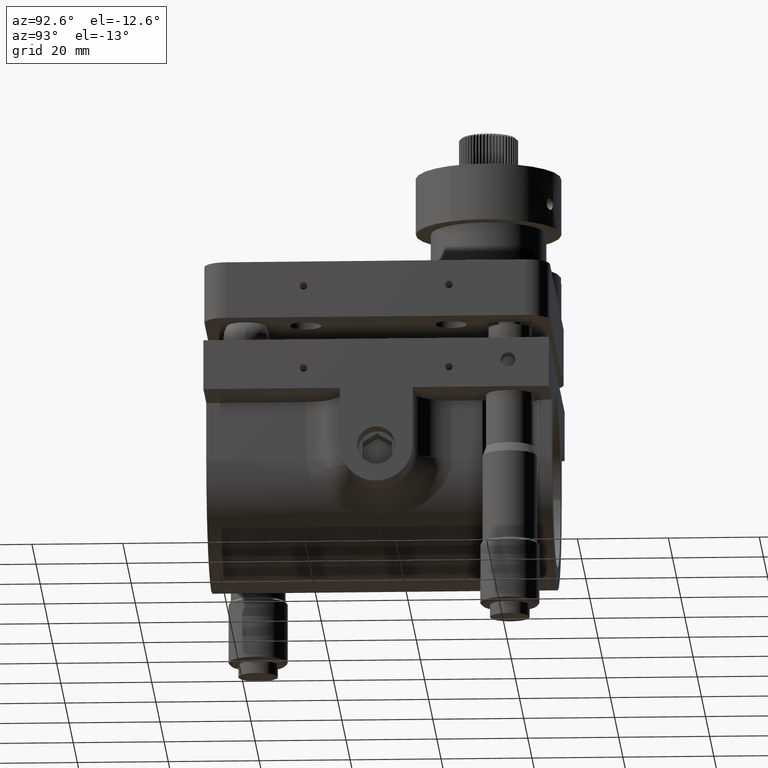
[diagram: clean part render]
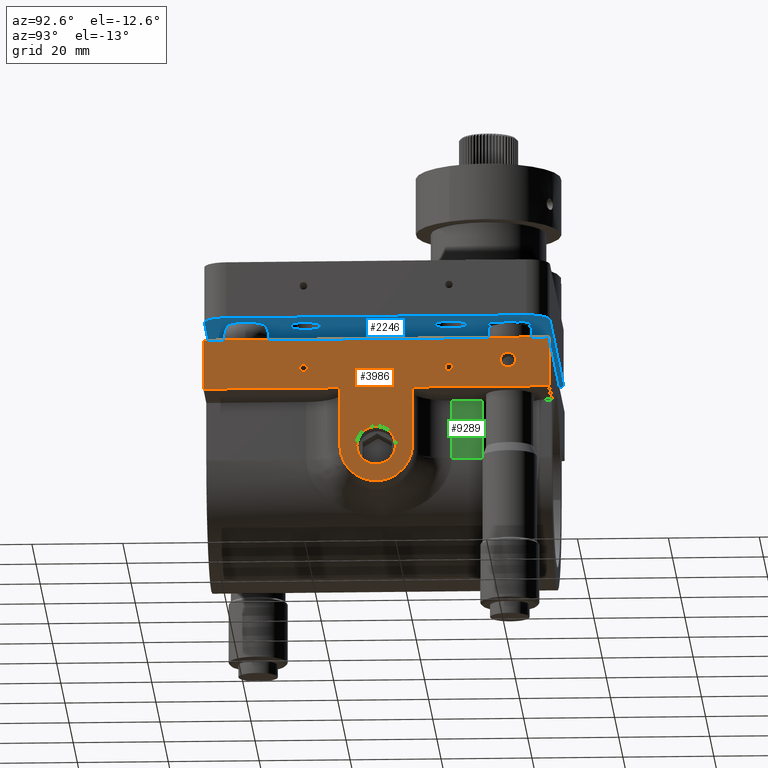
[diagram: same view with three faces highlighted in distinct colors, each labeled with its STEP entity id]
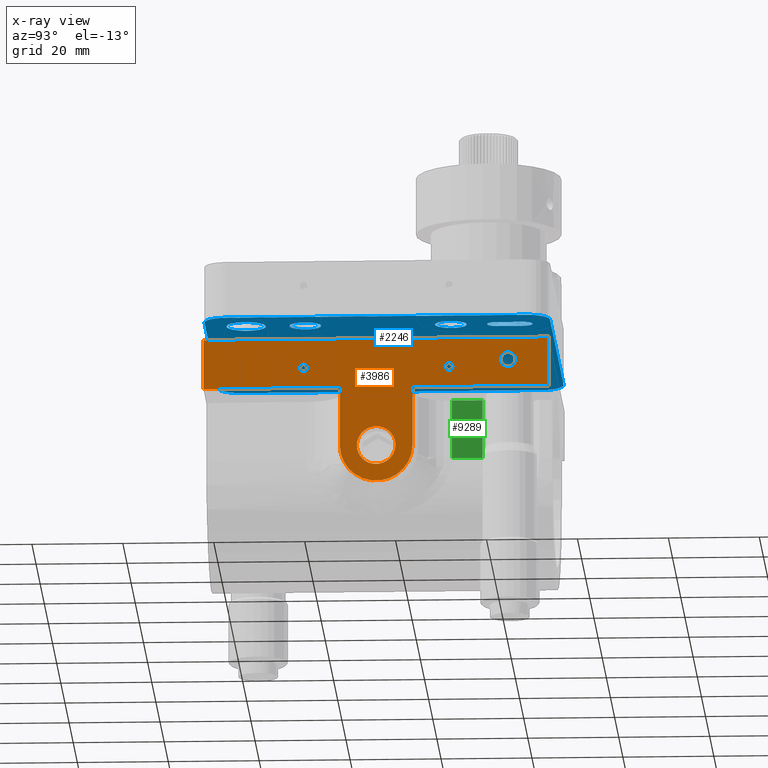
[diagram: x-ray of the same camera — body ghosted, the three highlighted faces saturated]
A machine part, auxiliary view with three faces highlighted in distinct colors.
The next image is the same camera in x-ray (body ghosted, the three faces saturated) — at least one of them is partly hidden behind the body in this view.
Their STEP definitions:

[orange] entity #3986 — the highlighted planar face has unit normal (1, 0, 0).
#56 = EDGE_CURVE ( 'NONE', #9675, #6770, #5844, .T. ) ;
#70 = CARTESIAN_POINT ( 'NONE',  ( 38.00000000000003600, 234.0000000000001100, 13.00000000000002000 ) ) ;
#109 = DIRECTION ( 'NONE',  ( 1.000000000000000000, 3.356086344444792600E-016, 1.025412375725086200E-017 ) ) ;
#124 = VERTEX_POINT ( 'NONE', #10562 ) ;
#136 = CARTESIAN_POINT ( 'NONE',  ( 37.99999999999997900, 310.0000000000001700, 12.99999999999998900 ) ) ;
#180 = ORIENTED_EDGE ( 'NONE', *, *, #6428, .T. ) ;
#201 = VECTOR ( 'NONE', #1202, 1000.000000000000000 ) ;
#412 = VERTEX_POINT ( 'NONE', #11093 ) ;
#468 = VECTOR ( 'NONE', #11022, 1000.000000000000000 ) ;
#483 = CARTESIAN_POINT ( 'NONE',  ( 38.00000000000005700, 287.1500000000001500, 17.50000000000002800 ) ) ;
#566 = CARTESIAN_POINT ( 'NONE',  ( 38.00000000000001400, 276.2500000000001100, 2.115505114055332400E-015 ) ) ;
#672 = AXIS2_PLACEMENT_3D ( 'NONE', #4321, #11978, #6866 ) ;
#733 = LINE ( 'NONE', #1292, #3561 ) ;
#752 = FACE_OUTER_BOUND ( 'NONE', #4712, .T. ) ;
#990 = DIRECTION ( 'NONE',  ( 1.000000000000000000, 3.356086344444792600E-016, 1.025412375725086200E-017 ) ) ;
#1153 = CARTESIAN_POINT ( 'NONE',  ( 38.00000000000001400, 267.7500000000001700, 4.202666036901082200E-015 ) ) ;
#1202 = DIRECTION ( 'NONE',  ( 1.025412375725082900E-017, 1.320038492901063100E-016, 1.000000000000000000 ) ) ;
#1221 = AXIS2_PLACEMENT_3D ( 'NONE', #2695, #9407, #5815 ) ;
#1225 = CARTESIAN_POINT ( 'NONE',  ( 38.00000000000005700, 288.8500000000001400, 17.50000000000003200 ) ) ;
#1292 = CARTESIAN_POINT ( 'NONE',  ( 37.99999999999997900, 310.0000000000001700, 12.99999999999998900 ) ) ;
#1301 = CARTESIAN_POINT ( 'NONE',  ( 38.00000000000005000, 301.0000000000001700, 18.99999999999999600 ) ) ;
#1314 = ORIENTED_EDGE ( 'NONE', *, *, #11535, .F. ) ;
#1423 = ORIENTED_EDGE ( 'NONE', *, *, #6841, .F. ) ;
#1573 = EDGE_CURVE ( 'NONE', #5611, #412, #733, .T. ) ;
#1608 = CARTESIAN_POINT ( 'NONE',  ( 38.00000000000001400, 272.0000000000001100, 3.469446951953614200E-015 ) ) ;
#1675 = EDGE_LOOP ( 'NONE', ( #8608, #5345 ) ) ;
#1739 = EDGE_CURVE ( 'NONE', #2347, #9618, #2671, .T. ) ;
#1752 = VERTEX_POINT ( 'NONE', #10173 ) ;
#1816 = LINE ( 'NONE', #136, #6895 ) ;
#2009 = VERTEX_POINT ( 'NONE', #4859 ) ;
#2051 = ORIENTED_EDGE ( 'NONE', *, *, #4196, .F. ) ;
#2120 = EDGE_CURVE ( 'NONE', #3007, #3743, #2370, .T. ) ;
#2221 = CIRCLE ( 'NONE', #8136, 1.649999999999984800 ) ;
#2347 = VERTEX_POINT ( 'NONE', #566 ) ;
#2370 = CIRCLE ( 'NONE', #1221, 8.000000000000007100 ) ;
#2671 = CIRCLE ( 'NONE', #2929, 4.249999999999976000 ) ;
#2695 = CARTESIAN_POINT ( 'NONE',  ( 38.00000000000001400, 272.0000000000001100, 3.469446951953614200E-015 ) ) ;
#2698 = ORIENTED_EDGE ( 'NONE', *, *, #2120, .T. ) ;
#2700 = DIRECTION ( 'NONE',  ( 0.0000000000000000000, -1.000000000000000000, 1.725221376346993600E-016 ) ) ;
#2929 = AXIS2_PLACEMENT_3D ( 'NONE', #1608, #3495, #9295 ) ;
#3007 = VERTEX_POINT ( 'NONE', #7470 ) ;
#3225 = DIRECTION ( 'NONE',  ( 1.000000000000000000, 3.356086344444792600E-016, 1.025412375725086200E-017 ) ) ;
#3495 = DIRECTION ( 'NONE',  ( 1.000000000000000000, 3.356086344444792600E-016, 1.025412375725086200E-017 ) ) ;
#3539 = VERTEX_POINT ( 'NONE', #70 ) ;
#3550 = CIRCLE ( 'NONE', #672, 0.8500000000000174100 ) ;
#3561 = VECTOR ( 'NONE', #9890, 1000.000000000000000 ) ;
#3663 = CARTESIAN_POINT ( 'NONE',  ( 38.00000000000003600, 234.0000000000001100, 24.00000000000001100 ) ) ;
#3684 = DIRECTION ( 'NONE',  ( 8.022492494822361800E-016, -1.000000000000000000, 1.725221376346992100E-016 ) ) ;
#3717 = EDGE_CURVE ( 'NONE', #124, #1752, #5387, .T. ) ;
#3743 = VERTEX_POINT ( 'NONE', #11835 ) ;
#3765 = CARTESIAN_POINT ( 'NONE',  ( 38.00000000000001400, 272.0000000000001100, 3.469446951953614200E-015 ) ) ;
#3769 = EDGE_CURVE ( 'NONE', #12337, #3007, #8408, .T. ) ;
#3986 = ADVANCED_FACE ( 'NONE', ( #11546, #6438, #5824, #10933, #752 ), #9600, .T. ) ;
#4114 = DIRECTION ( 'NONE',  ( 1.000000000000000000, 3.356086344444792600E-016, 1.025412375725086200E-017 ) ) ;
#4196 = EDGE_CURVE ( 'NONE', #12337, #3539, #1816, .T. ) ;
#4205 = ORIENTED_EDGE ( 'NONE', *, *, #5157, .F. ) ;
#4293 = CARTESIAN_POINT ( 'NONE',  ( 38.00000000000005000, 302.6500000000001500, 18.99999999999999600 ) ) ;
#4321 = CARTESIAN_POINT ( 'NONE',  ( 38.00000000000005700, 288.0000000000001700, 17.50000000000002800 ) ) ;
#4507 = EDGE_CURVE ( 'NONE', #5611, #2009, #12442, .T. ) ;
#4588 = AXIS2_PLACEMENT_3D ( 'NONE', #11595, #6734, #4910 ) ;
#4712 = EDGE_LOOP ( 'NONE', ( #4205, #2051, #8904, #2698, #5655, #11484, #11465, #180 ) ) ;
#4787 = CARTESIAN_POINT ( 'NONE',  ( 37.99999999999997900, 310.0000000000001700, 24.00000000000001800 ) ) ;
#4859 = CARTESIAN_POINT ( 'NONE',  ( 37.99999999999997900, 310.0000000000001700, 24.00000000000001800 ) ) ;
#4910 = DIRECTION ( 'NONE',  ( 0.0000000000000000000, -1.000000000000000000, 0.0000000000000000000 ) ) ;
#5054 = AXIS2_PLACEMENT_3D ( 'NONE', #4787, #11528, #9555 ) ;
#5097 = EDGE_LOOP ( 'NONE', ( #1423, #1314 ) ) ;
#5106 = CARTESIAN_POINT ( 'NONE',  ( 37.99999999999997900, 310.0000000000001700, 24.00000000000001800 ) ) ;
#5157 = EDGE_CURVE ( 'NONE', #3539, #8013, #11829, .T. ) ;
#5164 = DIRECTION ( 'NONE',  ( 0.0000000000000000000, -1.000000000000000000, 0.0000000000000000000 ) ) ;
#5274 = LINE ( 'NONE', #5986, #201 ) ;
#5345 = ORIENTED_EDGE ( 'NONE', *, *, #1739, .F. ) ;
#5387 = CIRCLE ( 'NONE', #12222, 0.8500000000000174100 ) ;
#5611 = VERTEX_POINT ( 'NONE', #8903 ) ;
#5655 = ORIENTED_EDGE ( 'NONE', *, *, #8461, .T. ) ;
#5815 = DIRECTION ( 'NONE',  ( 8.673617379884027600E-016, -1.000000000000000000, 1.725221376346986900E-016 ) ) ;
#5824 = FACE_BOUND ( 'NONE', #5097, .T. ) ;
#5844 = CIRCLE ( 'NONE', #9749, 1.649999999999984800 ) ;
#5986 = CARTESIAN_POINT ( 'NONE',  ( 38.00000000000000700, 280.0000000000001100, 3.469446951953614200E-015 ) ) ;
#6161 = CARTESIAN_POINT ( 'NONE',  ( 38.00000000000002100, 256.0000000000001100, 17.50000000000000000 ) ) ;
#6428 = EDGE_CURVE ( 'NONE', #2009, #8013, #10247, .T. ) ;
#6438 = FACE_BOUND ( 'NONE', #11605, .T. ) ;
#6523 = EDGE_CURVE ( 'NONE', #1752, #124, #8444, .T. ) ;
#6726 = VECTOR ( 'NONE', #10387, 1000.000000000000000 ) ;
#6734 = DIRECTION ( 'NONE',  ( 1.000000000000000000, 3.356086344444792600E-016, 1.025412375725086200E-017 ) ) ;
#6770 = VERTEX_POINT ( 'NONE', #8377 ) ;
#6841 = EDGE_CURVE ( 'NONE', #7430, #10113, #12203, .T. ) ;
#6866 = DIRECTION ( 'NONE',  ( 0.0000000000000000000, -1.000000000000000000, 0.0000000000000000000 ) ) ;
#6885 = CARTESIAN_POINT ( 'NONE',  ( 37.99999999999997900, 310.0000000000001700, 24.00000000000001800 ) ) ;
#6895 = VECTOR ( 'NONE', #12406, 1000.000000000000000 ) ;
#7043 = CIRCLE ( 'NONE', #9081, 4.249999999999976000 ) ;
#7430 = VERTEX_POINT ( 'NONE', #483 ) ;
#7470 = CARTESIAN_POINT ( 'NONE',  ( 38.00000000000008500, 264.0000000000001100, 3.816391647148975600E-014 ) ) ;
#8013 = VERTEX_POINT ( 'NONE', #11554 ) ;
#8125 = CARTESIAN_POINT ( 'NONE',  ( 38.00000000000002100, 256.0000000000001100, 17.50000000000000000 ) ) ;
#8128 = DIRECTION ( 'NONE',  ( 1.025412375725082900E-017, 1.320038492901063100E-016, 1.000000000000000000 ) ) ;
#8136 = AXIS2_PLACEMENT_3D ( 'NONE', #1301, #4114, #5164 ) ;
#8377 = CARTESIAN_POINT ( 'NONE',  ( 38.00000000000005000, 299.3500000000001900, 18.99999999999999600 ) ) ;
#8408 = LINE ( 'NONE', #10059, #468 ) ;
#8444 = CIRCLE ( 'NONE', #8539, 0.8500000000000174100 ) ;
#8461 = EDGE_CURVE ( 'NONE', #3743, #412, #5274, .T. ) ;
#8539 = AXIS2_PLACEMENT_3D ( 'NONE', #8125, #9922, #11008 ) ;
#8555 = CARTESIAN_POINT ( 'NONE',  ( 38.00000000000007100, 264.0000000000001100, 13.00000000000000700 ) ) ;
#8608 = ORIENTED_EDGE ( 'NONE', *, *, #10449, .F. ) ;
#8675 = DIRECTION ( 'NONE',  ( 0.0000000000000000000, -1.000000000000000000, 0.0000000000000000000 ) ) ;
#8903 = CARTESIAN_POINT ( 'NONE',  ( 37.99999999999997900, 310.0000000000001700, 12.99999999999998900 ) ) ;
#8904 = ORIENTED_EDGE ( 'NONE', *, *, #3769, .T. ) ;
#8980 = EDGE_LOOP ( 'NONE', ( #9111, #9824 ) ) ;
#9081 = AXIS2_PLACEMENT_3D ( 'NONE', #3765, #990, #2700 ) ;
#9111 = ORIENTED_EDGE ( 'NONE', *, *, #11917, .F. ) ;
#9295 = DIRECTION ( 'NONE',  ( 0.0000000000000000000, -1.000000000000000000, 1.725221376346993600E-016 ) ) ;
#9407 = DIRECTION ( 'NONE',  ( 1.000000000000000000, 3.356086344444792600E-016, 1.025412375725086200E-017 ) ) ;
#9555 = DIRECTION ( 'NONE',  ( 8.022492494822361800E-016, -1.000000000000000000, 1.725221376346992100E-016 ) ) ;
#9600 = PLANE ( 'NONE',  #5054 ) ;
#9618 = VERTEX_POINT ( 'NONE', #1153 ) ;
#9675 = VERTEX_POINT ( 'NONE', #4293 ) ;
#9732 = ORIENTED_EDGE ( 'NONE', *, *, #3717, .F. ) ;
#9749 = AXIS2_PLACEMENT_3D ( 'NONE', #11445, #109, #8675 ) ;
#9824 = ORIENTED_EDGE ( 'NONE', *, *, #56, .F. ) ;
#9877 = VECTOR ( 'NONE', #8128, 1000.000000000000000 ) ;
#9890 = DIRECTION ( 'NONE',  ( 8.022492494822361800E-016, -1.000000000000000000, 1.725221376346992100E-016 ) ) ;
#9922 = DIRECTION ( 'NONE',  ( 1.000000000000000000, 3.356086344444792600E-016, 1.025412375725086200E-017 ) ) ;
#10059 = CARTESIAN_POINT ( 'NONE',  ( 38.00000000000008500, 264.0000000000001100, 3.816391647148975600E-014 ) ) ;
#10113 = VERTEX_POINT ( 'NONE', #1225 ) ;
#10173 = CARTESIAN_POINT ( 'NONE',  ( 38.00000000000002100, 255.1500000000000900, 17.50000000000000000 ) ) ;
#10247 = LINE ( 'NONE', #6885, #10536 ) ;
#10292 = ORIENTED_EDGE ( 'NONE', *, *, #6523, .F. ) ;
#10387 = DIRECTION ( 'NONE',  ( 1.025412375725082900E-017, 1.320038492901063100E-016, 1.000000000000000000 ) ) ;
#10449 = EDGE_CURVE ( 'NONE', #9618, #2347, #7043, .T. ) ;
#10536 = VECTOR ( 'NONE', #3684, 1000.000000000000000 ) ;
#10562 = CARTESIAN_POINT ( 'NONE',  ( 38.00000000000002100, 256.8500000000001400, 17.50000000000000000 ) ) ;
#10858 = DIRECTION ( 'NONE',  ( 0.0000000000000000000, 1.000000000000000000, 0.0000000000000000000 ) ) ;
#10933 = FACE_BOUND ( 'NONE', #1675, .T. ) ;
#11008 = DIRECTION ( 'NONE',  ( 0.0000000000000000000, 1.000000000000000000, 0.0000000000000000000 ) ) ;
#11022 = DIRECTION ( 'NONE',  ( -1.025412375725082900E-017, -1.320038492901063100E-016, -1.000000000000000000 ) ) ;
#11093 = CARTESIAN_POINT ( 'NONE',  ( 37.99999999999999300, 280.0000000000001100, 13.00000000000001200 ) ) ;
#11445 = CARTESIAN_POINT ( 'NONE',  ( 38.00000000000005000, 301.0000000000001700, 18.99999999999999600 ) ) ;
#11465 = ORIENTED_EDGE ( 'NONE', *, *, #4507, .T. ) ;
#11484 = ORIENTED_EDGE ( 'NONE', *, *, #1573, .F. ) ;
#11528 = DIRECTION ( 'NONE',  ( 1.000000000000000000, 8.022492494822361800E-016, 1.025412375725078100E-017 ) ) ;
#11535 = EDGE_CURVE ( 'NONE', #10113, #7430, #3550, .T. ) ;
#11546 = FACE_BOUND ( 'NONE', #8980, .T. ) ;
#11554 = CARTESIAN_POINT ( 'NONE',  ( 38.00000000000003600, 234.0000000000001100, 24.00000000000001100 ) ) ;
#11595 = CARTESIAN_POINT ( 'NONE',  ( 38.00000000000005700, 288.0000000000001700, 17.50000000000002800 ) ) ;
#11605 = EDGE_LOOP ( 'NONE', ( #10292, #9732 ) ) ;
#11829 = LINE ( 'NONE', #3663, #6726 ) ;
#11835 = CARTESIAN_POINT ( 'NONE',  ( 38.00000000000000700, 280.0000000000001100, 3.469446951953614200E-015 ) ) ;
#11917 = EDGE_CURVE ( 'NONE', #6770, #9675, #2221, .T. ) ;
#11978 = DIRECTION ( 'NONE',  ( 1.000000000000000000, 3.356086344444792600E-016, 1.025412375725086200E-017 ) ) ;
#12203 = CIRCLE ( 'NONE', #4588, 0.8500000000000174100 ) ;
#12222 = AXIS2_PLACEMENT_3D ( 'NONE', #6161, #3225, #10858 ) ;
#12337 = VERTEX_POINT ( 'NONE', #8555 ) ;
#12406 = DIRECTION ( 'NONE',  ( 8.022492494822361800E-016, -1.000000000000000000, 1.725221376346992100E-016 ) ) ;
#12442 = LINE ( 'NONE', #5106, #9877 ) ;

[blue] entity #2246 — the highlighted planar face has unit normal (0, -0, -1).
#4 = DIRECTION ( 'NONE',  ( 1.214306433183765000E-016, -8.898946942662199400E-031, -1.000000000000000000 ) ) ;
#7 = LINE ( 'NONE', #5582, #12297 ) ;
#14 = AXIS2_PLACEMENT_3D ( 'NONE', #1842, #2765, #9483 ) ;
#86 = VERTEX_POINT ( 'NONE', #4631 ) ;
#92 = DIRECTION ( 'NONE',  ( 6.308085367188383300E-016, -1.000000000000000000, 0.0000000000000000000 ) ) ;
#133 = CIRCLE ( 'NONE', #10191, 4.330127018922186500 ) ;
#151 = CARTESIAN_POINT ( 'NONE',  ( 38.00000000000007800, 305.0000000000000600, 29.00000000000000700 ) ) ;
#234 = DIRECTION ( 'NONE',  ( 1.214306433183765000E-016, -8.898946942662199400E-031, -1.000000000000000000 ) ) ;
#517 = EDGE_CURVE ( 'NONE', #2880, #4401, #1068, .T. ) ;
#580 = ORIENTED_EDGE ( 'NONE', *, *, #5485, .T. ) ;
#592 = EDGE_CURVE ( 'NONE', #6102, #2576, #11550, .T. ) ;
#658 = AXIS2_PLACEMENT_3D ( 'NONE', #11979, #1473, #8968 ) ;
#682 = EDGE_CURVE ( 'NONE', #86, #9603, #10655, .T. ) ;
#716 = FACE_BOUND ( 'NONE', #9539, .T. ) ;
#751 = EDGE_CURVE ( 'NONE', #4401, #7965, #7, .T. ) ;
#809 = CARTESIAN_POINT ( 'NONE',  ( 27.00000000000001800, 298.0000000000000600, 29.00000000000000400 ) ) ;
#883 = VECTOR ( 'NONE', #5206, 1000.000000000000000 ) ;
#1001 = AXIS2_PLACEMENT_3D ( 'NONE', #3474, #4351, #8222 ) ;
#1013 = FACE_BOUND ( 'NONE', #9678, .T. ) ;
#1016 = VERTEX_POINT ( 'NONE', #6382 ) ;
#1068 = CIRCLE ( 'NONE', #3407, 5.000000000000004400 ) ;
#1148 = VERTEX_POINT ( 'NONE', #9147 ) ;
#1220 = VERTEX_POINT ( 'NONE', #4313 ) ;
#1242 = CARTESIAN_POINT ( 'NONE',  ( 33.00000000000011400, 234.0000000000000300, 29.00000000000000700 ) ) ;
#1315 = CARTESIAN_POINT ( 'NONE',  ( 29.00000000000000400, 256.0000000000000600, 29.00000000000000400 ) ) ;
#1434 = EDGE_LOOP ( 'NONE', ( #580, #7670 ) ) ;
#1473 = DIRECTION ( 'NONE',  ( 1.214306433183765000E-016, -8.898946942662199400E-031, -1.000000000000000000 ) ) ;
#1579 = VERTEX_POINT ( 'NONE', #6886 ) ;
#1601 = DIRECTION ( 'NONE',  ( 8.673617379884027600E-016, -1.000000000000000000, 0.0000000000000000000 ) ) ;
#1622 = CARTESIAN_POINT ( 'NONE',  ( -32.99999999999992200, 305.0000000000000000, 28.99999999999999600 ) ) ;
#1658 = AXIS2_PLACEMENT_3D ( 'NONE', #11649, #234, #6880 ) ;
#1663 = EDGE_CURVE ( 'NONE', #2337, #9471, #8825, .T. ) ;
#1699 = CARTESIAN_POINT ( 'NONE',  ( 31.00000000000001100, 304.0000000000000600, 29.00000000000000400 ) ) ;
#1784 = CARTESIAN_POINT ( 'NONE',  ( -21.99999999999998200, 294.0000000000000000, 29.00000000000000000 ) ) ;
#1842 = CARTESIAN_POINT ( 'NONE',  ( 29.00000000000000400, 256.0000000000000600, 29.00000000000000400 ) ) ;
#1849 = DIRECTION ( 'NONE',  ( -1.000000000000000000, -5.210289740157240400E-016, -1.214306433183765000E-016 ) ) ;
#1861 = DIRECTION ( 'NONE',  ( 1.214306433183765000E-016, -8.898946942662199400E-031, -1.000000000000000000 ) ) ;
#2019 = CARTESIAN_POINT ( 'NONE',  ( 33.00000000000007800, 305.0000000000000600, 29.00000000000000700 ) ) ;
#2020 = CIRCLE ( 'NONE', #8453, 4.330127018922186500 ) ;
#2079 = EDGE_CURVE ( 'NONE', #1148, #4619, #133, .T. ) ;
#2111 = EDGE_CURVE ( 'NONE', #9471, #4430, #8971, .T. ) ;
#2246 = ADVANCED_FACE ( 'NONE', ( #8962, #3393, #716, #2789, #1013, #12112, #10151, #11805 ), #11956, .T. ) ;
#2274 = CARTESIAN_POINT ( 'NONE',  ( -21.99999999999998200, 294.0000000000000000, 29.00000000000000000 ) ) ;
#2337 = VERTEX_POINT ( 'NONE', #1699 ) ;
#2346 = VERTEX_POINT ( 'NONE', #11222 ) ;
#2452 = CIRCLE ( 'NONE', #3220, 5.500000000000005300 ) ;
#2484 = ORIENTED_EDGE ( 'NONE', *, *, #5000, .F. ) ;
#2528 = EDGE_CURVE ( 'NONE', #11460, #2346, #6541, .T. ) ;
#2545 = CIRCLE ( 'NONE', #3285, 4.000000000000003600 ) ;
#2576 = VERTEX_POINT ( 'NONE', #9632 ) ;
#2652 = AXIS2_PLACEMENT_3D ( 'NONE', #4749, #4, #6699 ) ;
#2765 = DIRECTION ( 'NONE',  ( 1.214306433183765000E-016, -8.898946942662199400E-031, -1.000000000000000000 ) ) ;
#2789 = FACE_BOUND ( 'NONE', #6990, .T. ) ;
#2798 = VECTOR ( 'NONE', #6695, 1000.000000000000000 ) ;
#2807 = LINE ( 'NONE', #10064, #10174 ) ;
#2866 = VECTOR ( 'NONE', #11003, 1000.000000000000000 ) ;
#2880 = VERTEX_POINT ( 'NONE', #9440 ) ;
#2893 = EDGE_CURVE ( 'NONE', #1220, #9383, #12397, .T. ) ;
#2962 = LINE ( 'NONE', #9938, #883 ) ;
#3095 = CARTESIAN_POINT ( 'NONE',  ( -37.99999999999992200, 305.0000000000000000, 28.99999999999999600 ) ) ;
#3144 = DIRECTION ( 'NONE',  ( 8.012344526598195600E-016, -1.000000000000000000, 0.0000000000000000000 ) ) ;
#3220 = AXIS2_PLACEMENT_3D ( 'NONE', #2274, #9087, #9048 ) ;
#3285 = AXIS2_PLACEMENT_3D ( 'NONE', #12225, #11162, #1601 ) ;
#3337 = EDGE_LOOP ( 'NONE', ( #7804, #5013 ) ) ;
#3393 = FACE_OUTER_BOUND ( 'NONE', #10396, .T. ) ;
#3404 = LINE ( 'NONE', #9900, #11056 ) ;
#3407 = AXIS2_PLACEMENT_3D ( 'NONE', #10385, #12412, #3706 ) ;
#3465 = DIRECTION ( 'NONE',  ( 1.214306433183765000E-016, -8.898946942662199400E-031, -1.000000000000000000 ) ) ;
#3474 = CARTESIAN_POINT ( 'NONE',  ( 29.00000000000001400, 298.0000000000000600, 29.00000000000000400 ) ) ;
#3508 = DIRECTION ( 'NONE',  ( 0.0000000000000000000, -1.000000000000000000, 0.0000000000000000000 ) ) ;
#3588 = CIRCLE ( 'NONE', #7950, 3.500000000000003100 ) ;
#3593 = VERTEX_POINT ( 'NONE', #3095 ) ;
#3599 = CIRCLE ( 'NONE', #5839, 3.500000000000003100 ) ;
#3628 = ORIENTED_EDGE ( 'NONE', *, *, #10371, .F. ) ;
#3671 = CIRCLE ( 'NONE', #1658, 2.000000000000001800 ) ;
#3695 = EDGE_CURVE ( 'NONE', #2346, #11460, #3588, .T. ) ;
#3706 = DIRECTION ( 'NONE',  ( 0.0000000000000000000, -1.000000000000000000, 0.0000000000000000000 ) ) ;
#3742 = DIRECTION ( 'NONE',  ( 9.912705577010316700E-016, -1.000000000000000000, 0.0000000000000000000 ) ) ;
#3751 = CIRCLE ( 'NONE', #4122, 3.500000000000003100 ) ;
#3990 = VERTEX_POINT ( 'NONE', #10508 ) ;
#4033 = CARTESIAN_POINT ( 'NONE',  ( 29.00000000000001100, 243.0000000000000600, 29.00000000000000400 ) ) ;
#4067 = DIRECTION ( 'NONE',  ( -5.210289740157184200E-016, 1.000000000000000000, -6.878271161758031400E-031 ) ) ;
#4122 = AXIS2_PLACEMENT_3D ( 'NONE', #1315, #6054, #5221 ) ;
#4198 = CARTESIAN_POINT ( 'NONE',  ( 27.00000000000001400, 304.0000000000000600, 29.00000000000000400 ) ) ;
#4257 = ORIENTED_EDGE ( 'NONE', *, *, #3695, .F. ) ;
#4278 = AXIS2_PLACEMENT_3D ( 'NONE', #2019, #9714, #6871 ) ;
#4294 = CARTESIAN_POINT ( 'NONE',  ( 29.00000000000002100, 288.0000000000000600, 29.00000000000000400 ) ) ;
#4310 = VERTEX_POINT ( 'NONE', #4865 ) ;
#4313 = CARTESIAN_POINT ( 'NONE',  ( 29.00000000000000700, 252.5000000000000600, 29.00000000000000400 ) ) ;
#4351 = DIRECTION ( 'NONE',  ( 1.214306433183765000E-016, -8.898946942662199400E-031, -1.000000000000000000 ) ) ;
#4401 = VERTEX_POINT ( 'NONE', #1242 ) ;
#4430 = VERTEX_POINT ( 'NONE', #10730 ) ;
#4448 = CARTESIAN_POINT ( 'NONE',  ( 29.00000000000000000, 259.5000000000000600, 29.00000000000000400 ) ) ;
#4523 = ORIENTED_EDGE ( 'NONE', *, *, #10690, .T. ) ;
#4619 = VERTEX_POINT ( 'NONE', #11907 ) ;
#4631 = CARTESIAN_POINT ( 'NONE',  ( 33.00000000000000700, 310.0000000000000600, 29.00000000000000700 ) ) ;
#4749 = CARTESIAN_POINT ( 'NONE',  ( -28.99999999999999600, 256.0000000000000000, 28.99999999999999600 ) ) ;
#4819 = ORIENTED_EDGE ( 'NONE', *, *, #592, .F. ) ;
#4838 = CARTESIAN_POINT ( 'NONE',  ( 29.00000000000002500, 284.5000000000000600, 29.00000000000000400 ) ) ;
#4865 = CARTESIAN_POINT ( 'NONE',  ( -32.99999999999999300, 310.0000000000000000, 28.99999999999999600 ) ) ;
#4944 = CARTESIAN_POINT ( 'NONE',  ( 29.00000000000001400, 298.0000000000000600, 29.00000000000000400 ) ) ;
#4977 = AXIS2_PLACEMENT_3D ( 'NONE', #1622, #9273, #3508 ) ;
#5000 = EDGE_CURVE ( 'NONE', #1579, #9502, #6259, .T. ) ;
#5013 = ORIENTED_EDGE ( 'NONE', *, *, #8961, .F. ) ;
#5061 = EDGE_CURVE ( 'NONE', #1016, #3593, #2807, .T. ) ;
#5117 = DIRECTION ( 'NONE',  ( 9.912705577010316700E-016, -1.000000000000000000, 0.0000000000000000000 ) ) ;
#5146 = CIRCLE ( 'NONE', #4977, 5.000000000000004400 ) ;
#5206 = DIRECTION ( 'NONE',  ( 5.210289740157184200E-016, -1.000000000000000000, 6.878271161758031400E-031 ) ) ;
#5221 = DIRECTION ( 'NONE',  ( 9.912705577010316700E-016, -1.000000000000000000, 0.0000000000000000000 ) ) ;
#5250 = DIRECTION ( 'NONE',  ( 8.673617379884027600E-016, -1.000000000000000000, 0.0000000000000000000 ) ) ;
#5255 = CIRCLE ( 'NONE', #658, 5.000000000000004400 ) ;
#5265 = CIRCLE ( 'NONE', #9472, 3.500000000000003100 ) ;
#5269 = ORIENTED_EDGE ( 'NONE', *, *, #751, .T. ) ;
#5295 = ORIENTED_EDGE ( 'NONE', *, *, #9267, .T. ) ;
#5439 = ORIENTED_EDGE ( 'NONE', *, *, #5965, .F. ) ;
#5485 = EDGE_CURVE ( 'NONE', #4619, #1148, #2020, .T. ) ;
#5508 = CARTESIAN_POINT ( 'NONE',  ( -28.99999999999998900, 239.0000000000000600, 28.99999999999999600 ) ) ;
#5582 = CARTESIAN_POINT ( 'NONE',  ( 33.00000000000011400, 234.0000000000000300, 29.00000000000000700 ) ) ;
#5710 = ORIENTED_EDGE ( 'NONE', *, *, #1663, .F. ) ;
#5712 = EDGE_CURVE ( 'NONE', #3593, #4310, #5146, .T. ) ;
#5839 = AXIS2_PLACEMENT_3D ( 'NONE', #4294, #3465, #9270 ) ;
#5965 = EDGE_CURVE ( 'NONE', #2576, #6102, #2452, .T. ) ;
#6054 = DIRECTION ( 'NONE',  ( 1.214306433183765000E-016, -8.898946942662199400E-031, -1.000000000000000000 ) ) ;
#6073 = DIRECTION ( 'NONE',  ( -1.214306433183765000E-016, 8.898946942662199400E-031, 1.000000000000000000 ) ) ;
#6082 = EDGE_LOOP ( 'NONE', ( #3628, #2484 ) ) ;
#6102 = VERTEX_POINT ( 'NONE', #6714 ) ;
#6115 = CARTESIAN_POINT ( 'NONE',  ( 29.00000000000001100, 243.0000000000000600, 29.00000000000000400 ) ) ;
#6120 = DIRECTION ( 'NONE',  ( 1.214306433183765000E-016, -8.898946942662199400E-031, -1.000000000000000000 ) ) ;
#6244 = CARTESIAN_POINT ( 'NONE',  ( -28.99999999999998900, 243.0000000000000600, 28.99999999999999600 ) ) ;
#6259 = CIRCLE ( 'NONE', #6518, 4.000000000000003600 ) ;
#6381 = ORIENTED_EDGE ( 'NONE', *, *, #2893, .F. ) ;
#6382 = CARTESIAN_POINT ( 'NONE',  ( -37.99999999999995700, 239.0000000000000000, 28.99999999999999600 ) ) ;
#6518 = AXIS2_PLACEMENT_3D ( 'NONE', #6244, #9112, #5250 ) ;
#6541 = CIRCLE ( 'NONE', #2652, 3.500000000000003100 ) ;
#6695 = DIRECTION ( 'NONE',  ( 5.210289740157184200E-016, -1.000000000000000000, 6.878271161758031400E-031 ) ) ;
#6699 = DIRECTION ( 'NONE',  ( 9.912705577010316700E-016, -1.000000000000000000, 0.0000000000000000000 ) ) ;
#6714 = CARTESIAN_POINT ( 'NONE',  ( -21.99999999999998600, 299.5000000000000000, 29.00000000000000000 ) ) ;
#6722 = ORIENTED_EDGE ( 'NONE', *, *, #5712, .T. ) ;
#6742 = AXIS2_PLACEMENT_3D ( 'NONE', #4944, #7898, #11672 ) ;
#6871 = DIRECTION ( 'NONE',  ( 0.0000000000000000000, -1.000000000000000000, 0.0000000000000000000 ) ) ;
#6880 = DIRECTION ( 'NONE',  ( 0.0000000000000000000, -1.000000000000000000, 0.0000000000000000000 ) ) ;
#6886 = CARTESIAN_POINT ( 'NONE',  ( -28.99999999999999300, 247.0000000000000600, 28.99999999999999600 ) ) ;
#6975 = ORIENTED_EDGE ( 'NONE', *, *, #7445, .F. ) ;
#6990 = EDGE_LOOP ( 'NONE', ( #4257, #12440 ) ) ;
#7045 = ORIENTED_EDGE ( 'NONE', *, *, #517, .T. ) ;
#7109 = ORIENTED_EDGE ( 'NONE', *, *, #5061, .T. ) ;
#7146 = ORIENTED_EDGE ( 'NONE', *, *, #682, .T. ) ;
#7148 = ORIENTED_EDGE ( 'NONE', *, *, #7900, .T. ) ;
#7445 = EDGE_CURVE ( 'NONE', #4430, #12280, #10068, .T. ) ;
#7670 = ORIENTED_EDGE ( 'NONE', *, *, #2079, .T. ) ;
#7804 = ORIENTED_EDGE ( 'NONE', *, *, #8765, .F. ) ;
#7898 = DIRECTION ( 'NONE',  ( 1.214306433183765000E-016, -8.898946942662199400E-031, -1.000000000000000000 ) ) ;
#7900 = EDGE_CURVE ( 'NONE', #4310, #86, #9034, .T. ) ;
#7950 = AXIS2_PLACEMENT_3D ( 'NONE', #10020, #6120, #5117 ) ;
#7965 = VERTEX_POINT ( 'NONE', #11173 ) ;
#8090 = DIRECTION ( 'NONE',  ( 1.214306433183765000E-016, -6.245582326735607500E-031, -1.000000000000000000 ) ) ;
#8222 = DIRECTION ( 'NONE',  ( 0.0000000000000000000, -1.000000000000000000, 0.0000000000000000000 ) ) ;
#8229 = EDGE_CURVE ( 'NONE', #9383, #1220, #3751, .T. ) ;
#8453 = AXIS2_PLACEMENT_3D ( 'NONE', #6115, #6073, #11828 ) ;
#8510 = DIRECTION ( 'NONE',  ( 1.214306433183765000E-016, -8.898946942662199400E-031, -1.000000000000000000 ) ) ;
#8765 = EDGE_CURVE ( 'NONE', #12383, #3990, #3599, .T. ) ;
#8825 = LINE ( 'NONE', #11470, #2798 ) ;
#8961 = EDGE_CURVE ( 'NONE', #3990, #12383, #5265, .T. ) ;
#8962 = FACE_BOUND ( 'NONE', #9844, .T. ) ;
#8968 = DIRECTION ( 'NONE',  ( 0.0000000000000000000, -1.000000000000000000, 0.0000000000000000000 ) ) ;
#8971 = CIRCLE ( 'NONE', #6742, 2.000000000000001800 ) ;
#9034 = LINE ( 'NONE', #10807, #2866 ) ;
#9048 = DIRECTION ( 'NONE',  ( 6.308085367188383300E-016, -1.000000000000000000, 0.0000000000000000000 ) ) ;
#9087 = DIRECTION ( 'NONE',  ( 1.214306433183765000E-016, -8.898946942662199400E-031, -1.000000000000000000 ) ) ;
#9112 = DIRECTION ( 'NONE',  ( 1.214306433183765000E-016, -8.898946942662199400E-031, -1.000000000000000000 ) ) ;
#9147 = CARTESIAN_POINT ( 'NONE',  ( 29.00000000000000700, 247.3301270189222400, 29.00000000000000400 ) ) ;
#9205 = AXIS2_PLACEMENT_3D ( 'NONE', #1784, #8510, #92 ) ;
#9253 = CARTESIAN_POINT ( 'NONE',  ( 31.00000000000001400, 298.0000000000000600, 29.00000000000000400 ) ) ;
#9267 = EDGE_CURVE ( 'NONE', #7965, #1016, #5255, .T. ) ;
#9270 = DIRECTION ( 'NONE',  ( 9.912705577010316700E-016, -1.000000000000000000, 0.0000000000000000000 ) ) ;
#9273 = DIRECTION ( 'NONE',  ( 1.214306433183765000E-016, -8.898946942662199400E-031, -1.000000000000000000 ) ) ;
#9294 = ORIENTED_EDGE ( 'NONE', *, *, #12417, .F. ) ;
#9383 = VERTEX_POINT ( 'NONE', #4448 ) ;
#9440 = CARTESIAN_POINT ( 'NONE',  ( 38.00000000000004300, 239.0000000000000600, 29.00000000000000700 ) ) ;
#9471 = VERTEX_POINT ( 'NONE', #9253 ) ;
#9472 = AXIS2_PLACEMENT_3D ( 'NONE', #9591, #1861, #3742 ) ;
#9483 = DIRECTION ( 'NONE',  ( 9.912705577010316700E-016, -1.000000000000000000, 0.0000000000000000000 ) ) ;
#9502 = VERTEX_POINT ( 'NONE', #5508 ) ;
#9539 = EDGE_LOOP ( 'NONE', ( #5439, #4819 ) ) ;
#9591 = CARTESIAN_POINT ( 'NONE',  ( 29.00000000000002100, 288.0000000000000600, 29.00000000000000400 ) ) ;
#9603 = VERTEX_POINT ( 'NONE', #151 ) ;
#9632 = CARTESIAN_POINT ( 'NONE',  ( -21.99999999999997900, 288.5000000000000000, 29.00000000000000000 ) ) ;
#9678 = EDGE_LOOP ( 'NONE', ( #6381, #10895 ) ) ;
#9714 = DIRECTION ( 'NONE',  ( 1.214306433183765000E-016, -8.898946942662199400E-031, -1.000000000000000000 ) ) ;
#9844 = EDGE_LOOP ( 'NONE', ( #10984, #5710, #9294, #12420, #6975 ) ) ;
#9887 = CARTESIAN_POINT ( 'NONE',  ( -32.99999999999992200, 305.0000000000000000, 28.99999999999999600 ) ) ;
#9900 = CARTESIAN_POINT ( 'NONE',  ( 27.00000000000001800, 298.0000000000000600, 29.00000000000000400 ) ) ;
#9938 = CARTESIAN_POINT ( 'NONE',  ( 38.00000000000007800, 305.0000000000000600, 29.00000000000000700 ) ) ;
#10020 = CARTESIAN_POINT ( 'NONE',  ( -28.99999999999999600, 256.0000000000000000, 28.99999999999999600 ) ) ;
#10064 = CARTESIAN_POINT ( 'NONE',  ( -37.99999999999995700, 239.0000000000000000, 28.99999999999999600 ) ) ;
#10068 = CIRCLE ( 'NONE', #1001, 2.000000000000001800 ) ;
#10147 = VERTEX_POINT ( 'NONE', #4198 ) ;
#10151 = FACE_BOUND ( 'NONE', #6082, .T. ) ;
#10174 = VECTOR ( 'NONE', #10196, 1000.000000000000000 ) ;
#10191 = AXIS2_PLACEMENT_3D ( 'NONE', #4033, #10709, #3144 ) ;
#10196 = DIRECTION ( 'NONE',  ( -5.210289740157184200E-016, 1.000000000000000000, -6.878271161758031400E-031 ) ) ;
#10371 = EDGE_CURVE ( 'NONE', #9502, #1579, #2545, .T. ) ;
#10385 = CARTESIAN_POINT ( 'NONE',  ( 33.00000000000004300, 239.0000000000000600, 29.00000000000000700 ) ) ;
#10396 = EDGE_LOOP ( 'NONE', ( #6722, #7148, #7146, #4523, #7045, #5269, #5295, #7109 ) ) ;
#10508 = CARTESIAN_POINT ( 'NONE',  ( 29.00000000000001800, 291.5000000000000600, 29.00000000000000400 ) ) ;
#10655 = CIRCLE ( 'NONE', #4278, 5.000000000000004400 ) ;
#10690 = EDGE_CURVE ( 'NONE', #9603, #2880, #2962, .T. ) ;
#10709 = DIRECTION ( 'NONE',  ( -1.214306433183765000E-016, 8.898946942662199400E-031, 1.000000000000000000 ) ) ;
#10730 = CARTESIAN_POINT ( 'NONE',  ( 29.00000000000001400, 296.0000000000000600, 29.00000000000000400 ) ) ;
#10807 = CARTESIAN_POINT ( 'NONE',  ( -32.99999999999999300, 310.0000000000000000, 28.99999999999999600 ) ) ;
#10895 = ORIENTED_EDGE ( 'NONE', *, *, #8229, .F. ) ;
#10898 = DIRECTION ( 'NONE',  ( 5.210289740157184200E-016, -1.000000000000000000, 6.878271161758031400E-031 ) ) ;
#10984 = ORIENTED_EDGE ( 'NONE', *, *, #2111, .F. ) ;
#11003 = DIRECTION ( 'NONE',  ( 1.000000000000000000, 5.210289740157240400E-016, 1.214306433183765000E-016 ) ) ;
#11013 = EDGE_CURVE ( 'NONE', #12280, #10147, #3404, .T. ) ;
#11056 = VECTOR ( 'NONE', #4067, 1000.000000000000000 ) ;
#11162 = DIRECTION ( 'NONE',  ( 1.214306433183765000E-016, -8.898946942662199400E-031, -1.000000000000000000 ) ) ;
#11173 = CARTESIAN_POINT ( 'NONE',  ( -32.99999999999989300, 234.0000000000000300, 28.99999999999999600 ) ) ;
#11222 = CARTESIAN_POINT ( 'NONE',  ( -28.99999999999999300, 252.5000000000000000, 28.99999999999999600 ) ) ;
#11231 = AXIS2_PLACEMENT_3D ( 'NONE', #9887, #8090, #10898 ) ;
#11460 = VERTEX_POINT ( 'NONE', #12441 ) ;
#11470 = CARTESIAN_POINT ( 'NONE',  ( 31.00000000000001400, 298.0000000000000600, 29.00000000000000400 ) ) ;
#11550 = CIRCLE ( 'NONE', #9205, 5.500000000000005300 ) ;
#11649 = CARTESIAN_POINT ( 'NONE',  ( 29.00000000000001100, 304.0000000000000600, 29.00000000000000400 ) ) ;
#11672 = DIRECTION ( 'NONE',  ( 0.0000000000000000000, -1.000000000000000000, 0.0000000000000000000 ) ) ;
#11805 = FACE_BOUND ( 'NONE', #1434, .T. ) ;
#11828 = DIRECTION ( 'NONE',  ( 8.012344526598195600E-016, -1.000000000000000000, 0.0000000000000000000 ) ) ;
#11907 = CARTESIAN_POINT ( 'NONE',  ( 29.00000000000001400, 238.6698729810778700, 29.00000000000000400 ) ) ;
#11956 = PLANE ( 'NONE',  #11231 ) ;
#11979 = CARTESIAN_POINT ( 'NONE',  ( -32.99999999999995700, 239.0000000000000600, 28.99999999999999600 ) ) ;
#12112 = FACE_BOUND ( 'NONE', #3337, .T. ) ;
#12225 = CARTESIAN_POINT ( 'NONE',  ( -28.99999999999998900, 243.0000000000000600, 28.99999999999999600 ) ) ;
#12280 = VERTEX_POINT ( 'NONE', #809 ) ;
#12297 = VECTOR ( 'NONE', #1849, 1000.000000000000000 ) ;
#12383 = VERTEX_POINT ( 'NONE', #4838 ) ;
#12397 = CIRCLE ( 'NONE', #14, 3.500000000000003100 ) ;
#12412 = DIRECTION ( 'NONE',  ( 1.214306433183765000E-016, -8.898946942662199400E-031, -1.000000000000000000 ) ) ;
#12417 = EDGE_CURVE ( 'NONE', #10147, #2337, #3671, .T. ) ;
#12420 = ORIENTED_EDGE ( 'NONE', *, *, #11013, .F. ) ;
#12440 = ORIENTED_EDGE ( 'NONE', *, *, #2528, .F. ) ;
#12441 = CARTESIAN_POINT ( 'NONE',  ( -29.00000000000000000, 259.5000000000000000, 28.99999999999999600 ) ) ;

[green] entity #9289 — the highlighted planar face has unit normal (1, 0, 0).
#57 = CARTESIAN_POINT ( 'NONE',  ( 23.99999999999998200, 294.7550020016017800, -1.040834085586084300E-014 ) ) ;
#316 = VECTOR ( 'NONE', #10913, 1000.000000000000000 ) ;
#389 = DIRECTION ( 'NONE',  ( 8.022492494822361800E-016, -1.000000000000000000, 1.725221376346992100E-016 ) ) ;
#645 = CARTESIAN_POINT ( 'NONE',  ( 23.99999999999998600, 288.0000000000001700, 2.775557561562891400E-014 ) ) ;
#1992 = CARTESIAN_POINT ( 'NONE',  ( 23.99999999999998600, 288.0000000000001700, 2.775557561562891400E-014 ) ) ;
#2046 = ORIENTED_EDGE ( 'NONE', *, *, #6051, .T. ) ;
#2327 = VERTEX_POINT ( 'NONE', #645 ) ;
#2530 = DIRECTION ( 'NONE',  ( 1.025412375725082900E-017, 1.320038492901063100E-016, 1.000000000000000000 ) ) ;
#3187 = ORIENTED_EDGE ( 'NONE', *, *, #10290, .F. ) ;
#3489 = VECTOR ( 'NONE', #10604, 1000.000000000000000 ) ;
#3500 = VERTEX_POINT ( 'NONE', #5695 ) ;
#3786 = CARTESIAN_POINT ( 'NONE',  ( 24.00000000000002100, 310.0000000000001700, 12.99999999999999300 ) ) ;
#3987 = VERTEX_POINT ( 'NONE', #57 ) ;
#4396 = EDGE_LOOP ( 'NONE', ( #9942, #2046, #3187, #9908 ) ) ;
#5695 = CARTESIAN_POINT ( 'NONE',  ( 24.00000000000000400, 294.7550020016017800, 13.00000000000001800 ) ) ;
#5909 = CARTESIAN_POINT ( 'NONE',  ( 24.00000000000000700, 288.0000000000001700, 13.00000000000000400 ) ) ;
#6051 = EDGE_CURVE ( 'NONE', #10555, #2327, #10993, .T. ) ;
#6453 = VECTOR ( 'NONE', #11471, 1000.000000000000000 ) ;
#6589 = AXIS2_PLACEMENT_3D ( 'NONE', #10077, #7154, #389 ) ;
#7039 = PLANE ( 'NONE',  #6589 ) ;
#7154 = DIRECTION ( 'NONE',  ( 1.000000000000000000, 8.022492494822361800E-016, 1.025412375725078100E-017 ) ) ;
#7278 = CARTESIAN_POINT ( 'NONE',  ( 24.00000000000000700, 310.0000000000001700, 2.428612866367529900E-014 ) ) ;
#7428 = EDGE_CURVE ( 'NONE', #3987, #3500, #10082, .T. ) ;
#7539 = VECTOR ( 'NONE', #2530, 1000.000000000000000 ) ;
#9009 = LINE ( 'NONE', #3786, #6453 ) ;
#9092 = EDGE_CURVE ( 'NONE', #3500, #10555, #9009, .T. ) ;
#9289 = ADVANCED_FACE ( 'NONE', ( #9310 ), #7039, .T. ) ;
#9310 = FACE_OUTER_BOUND ( 'NONE', #4396, .T. ) ;
#9908 = ORIENTED_EDGE ( 'NONE', *, *, #7428, .T. ) ;
#9942 = ORIENTED_EDGE ( 'NONE', *, *, #9092, .T. ) ;
#10077 = CARTESIAN_POINT ( 'NONE',  ( 24.00000000000002100, 310.0000000000001700, 12.99999999999999300 ) ) ;
#10082 = LINE ( 'NONE', #12004, #7539 ) ;
#10290 = EDGE_CURVE ( 'NONE', #3987, #2327, #12303, .T. ) ;
#10555 = VERTEX_POINT ( 'NONE', #5909 ) ;
#10604 = DIRECTION ( 'NONE',  ( -1.025412375725082900E-017, -1.320038492901063100E-016, -1.000000000000000000 ) ) ;
#10913 = DIRECTION ( 'NONE',  ( 8.022492494822361800E-016, -1.000000000000000000, 1.725221376346992100E-016 ) ) ;
#10993 = LINE ( 'NONE', #1992, #3489 ) ;
#11471 = DIRECTION ( 'NONE',  ( 8.022492494822361800E-016, -1.000000000000000000, 1.725221376346992100E-016 ) ) ;
#12004 = CARTESIAN_POINT ( 'NONE',  ( 24.00000000000001100, 294.7550020016017800, -23.99999999999999600 ) ) ;
#12303 = LINE ( 'NONE', #7278, #316 ) ;